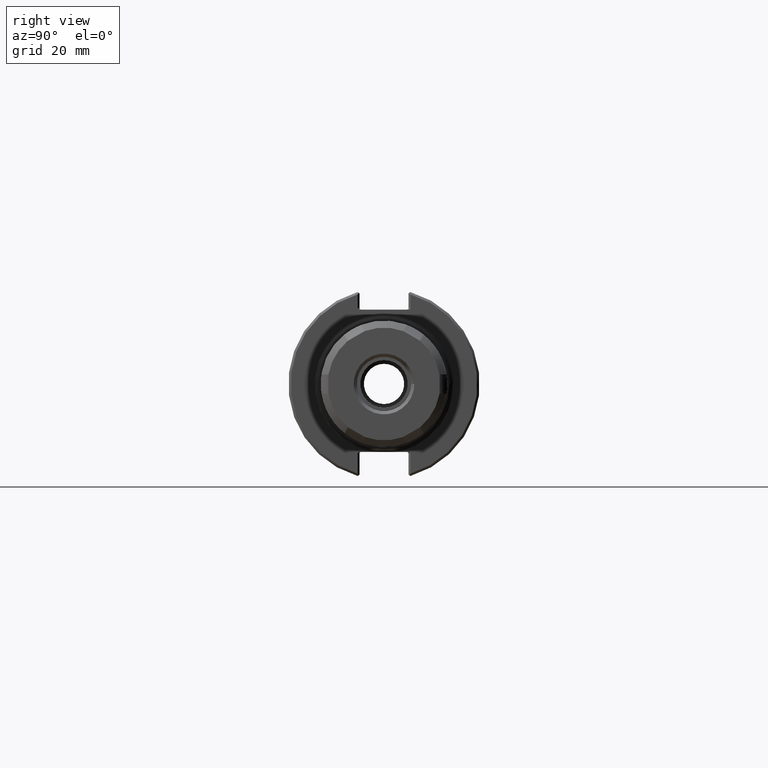
[diagram: clean part render]
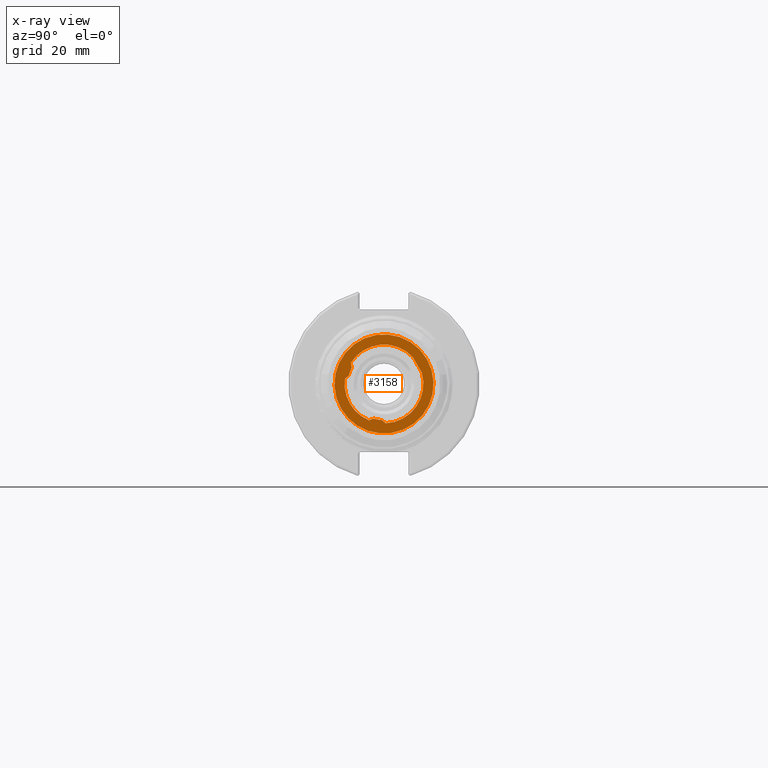
[diagram: x-ray — body ghosted, one internal face saturated and labeled with its STEP entity id]
A machine part, right view, then the same camera in x-ray: the body is ghosted and one INTERNAL B-rep face — a face not visible from any outside direction — is saturated and labeled: STEP entity #3158.
In plain terms, the highlighted planar face has unit normal (-1, 0, -0).
Its self-contained STEP definition (entity closure, byte-faithful):
#2861=CARTESIAN_POINT('',(11.5,6.032710850845192,-11.600087275106802));
#2862=VERTEX_POINT('',#2861);
#2869=CARTESIAN_POINT('',(11.5,6.609336638124291,-10.015820945082229));
#2870=VERTEX_POINT('',#2869);
#2871=CARTESIAN_POINT('',(11.5,6.609336638124292,-10.015820945082229));
#2872=DIRECTION('',(0.0,-0.342020143325668,-0.939692620785909));
#2873=VECTOR('',#2872,1.685941014094138);
#2874=LINE('',#2871,#2873);
#2875=EDGE_CURVE('',#2870,#2862,#2874,.T.);
#2901=CARTESIAN_POINT('',(11.5,6.609336638124291,10.015820945082229));
#2902=VERTEX_POINT('',#2901);
#2909=CARTESIAN_POINT('',(11.5,6.032710850845192,11.600087275106802));
#2910=VERTEX_POINT('',#2909);
#2911=CARTESIAN_POINT('',(11.5,6.03271085084519,11.600087275106802));
#2912=DIRECTION('',(0.0,0.342020143325669,-0.939692620785908));
#2913=VECTOR('',#2912,1.685941014094136);
#2914=LINE('',#2911,#2913);
#2915=EDGE_CURVE('',#2910,#2902,#2914,.T.);
#2941=CARTESIAN_POINT('',(11.5,-12.73,2.983743454119339));
#2942=VERTEX_POINT('',#2941);
#2943=CARTESIAN_POINT('',(11.5,0.0,0.0));
#2944=DIRECTION('',(-1.0,0.0,0.0));
#2945=DIRECTION('',(0.0,0.461392799299823,0.887195967503388));
#2946=AXIS2_PLACEMENT_3D('',#2943,#2944,#2945);
#2947=CIRCLE('',#2946,13.075000000000001);
#2948=EDGE_CURVE('',#2942,#2910,#2947,.T.);
#2973=CARTESIAN_POINT('',(11.5,-12.73,-2.983743454119336));
#2974=VERTEX_POINT('',#2973);
#2975=CARTESIAN_POINT('',(11.5,-12.73,-2.983743454119336));
#2976=DIRECTION('',(0.0,0.0,1.0));
#2977=VECTOR('',#2976,5.967486908238675);
#2978=LINE('',#2975,#2977);
#2979=EDGE_CURVE('',#2974,#2942,#2978,.T.);
#3003=CARTESIAN_POINT('',(11.5,0.0,0.0));
#3004=DIRECTION('',(-1.0,0.0,0.0));
#3005=DIRECTION('',(0.0,-0.973613766730401,-0.228202176223276));
#3006=AXIS2_PLACEMENT_3D('',#3003,#3004,#3005);
#3007=CIRCLE('',#3006,13.074999999999999);
#3008=EDGE_CURVE('',#2862,#2974,#3007,.T.);
#3030=CARTESIAN_POINT('',(11.5,10.376286638502652,-7.955394433692867));
#3031=VERTEX_POINT('',#3030);
#3038=CARTESIAN_POINT('',(11.5,10.376286638502652,7.955394433692867));
#3039=VERTEX_POINT('',#3038);
#3040=CARTESIAN_POINT('',(11.5,0.0,0.0));
#3041=DIRECTION('',(-1.0,0.0,0.0));
#3042=DIRECTION('',(0.0,0.793597448451445,-0.608443168924884));
#3043=AXIS2_PLACEMENT_3D('',#3040,#3041,#3042);
#3044=CIRCLE('',#3043,13.075000000000001);
#3045=EDGE_CURVE('',#3039,#3031,#3044,.T.);
#3070=CARTESIAN_POINT('',(11.5,8.715958856701477,8.248155018444255));
#3071=VERTEX_POINT('',#3070);
#3072=CARTESIAN_POINT('',(11.5,8.715958856701477,8.248155018444255));
#3073=DIRECTION('',(0.0,0.984807753012208,-0.173648177666933));
#3074=VECTOR('',#3073,1.685941014094143);
#3075=LINE('',#3072,#3074);
#3076=EDGE_CURVE('',#3071,#3039,#3075,.T.);
#3100=CARTESIAN_POINT('',(11.5,8.71595885670148,-8.248155018444249));
#3101=VERTEX_POINT('',#3100);
#3108=CARTESIAN_POINT('',(11.5,10.376286638502652,-7.955394433692868));
#3109=DIRECTION('',(0.0,-0.984807753012208,-0.173648177666929));
#3110=VECTOR('',#3109,1.685941014094138);
#3111=LINE('',#3108,#3110);
#3112=EDGE_CURVE('',#3031,#3101,#3111,.T.);
#3118=CARTESIAN_POINT('',(11.5,14.220000000000002,0.0));
#3119=DIRECTION('',(1.0,0.0,0.0));
#3120=DIRECTION('',(0.0,0.0,-1.0));
#3121=AXIS2_PLACEMENT_3D('',#3118,#3119,#3120);
#3122=PLANE('',#3121);
#3123=CARTESIAN_POINT('',(11.499999999999996,16.440000000000001,0.0));
#3124=VERTEX_POINT('',#3123);
#3125=CARTESIAN_POINT('',(11.499999999999996,0.0,0.0));
#3126=DIRECTION('',(1.0,0.0,0.0));
#3127=DIRECTION('',(0.0,1.0,0.0));
#3128=AXIS2_PLACEMENT_3D('',#3125,#3126,#3127);
#3129=CIRCLE('',#3128,16.440000000000001);
#3130=EDGE_CURVE('',#3124,#3124,#3129,.T.);
#3131=ORIENTED_EDGE('',*,*,#3130,.T.);
#3132=EDGE_LOOP('',(#3131));
#3133=FACE_OUTER_BOUND('',#3132,.T.);
#3134=ORIENTED_EDGE('',*,*,#2875,.T.);
#3135=ORIENTED_EDGE('',*,*,#3008,.T.);
#3136=ORIENTED_EDGE('',*,*,#2979,.T.);
#3137=ORIENTED_EDGE('',*,*,#2948,.T.);
#3138=ORIENTED_EDGE('',*,*,#2915,.T.);
#3139=CARTESIAN_POINT('',(11.5,0.0,0.0));
#3140=DIRECTION('',(1.0,0.0,0.0));
#3141=DIRECTION('',(0.0,1.0,0.0));
#3142=AXIS2_PLACEMENT_3D('',#3139,#3140,#3141);
#3143=CIRCLE('',#3142,12.000000000000002);
#3144=EDGE_CURVE('',#3071,#2902,#3143,.T.);
#3145=ORIENTED_EDGE('',*,*,#3144,.F.);
#3146=ORIENTED_EDGE('',*,*,#3076,.T.);
#3147=ORIENTED_EDGE('',*,*,#3045,.T.);
#3148=ORIENTED_EDGE('',*,*,#3112,.T.);
#3149=CARTESIAN_POINT('',(11.5,0.0,0.0));
#3150=DIRECTION('',(1.0,0.0,0.0));
#3151=DIRECTION('',(0.0,1.0,0.0));
#3152=AXIS2_PLACEMENT_3D('',#3149,#3150,#3151);
#3153=CIRCLE('',#3152,12.000000000000002);
#3154=EDGE_CURVE('',#2870,#3101,#3153,.T.);
#3155=ORIENTED_EDGE('',*,*,#3154,.F.);
#3156=EDGE_LOOP('',(#3134,#3135,#3136,#3137,#3138,#3145,#3146,#3147,#3148,#3155));
#3157=FACE_BOUND('',#3156,.T.);
#3158=ADVANCED_FACE('',(#3133,#3157),#3122,.T.);